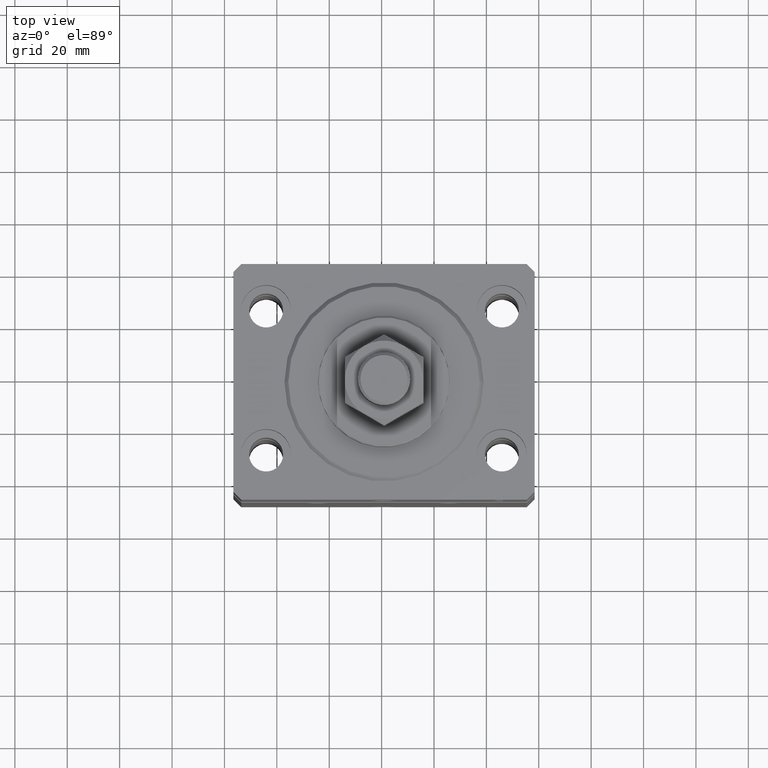
[diagram: clean part render]
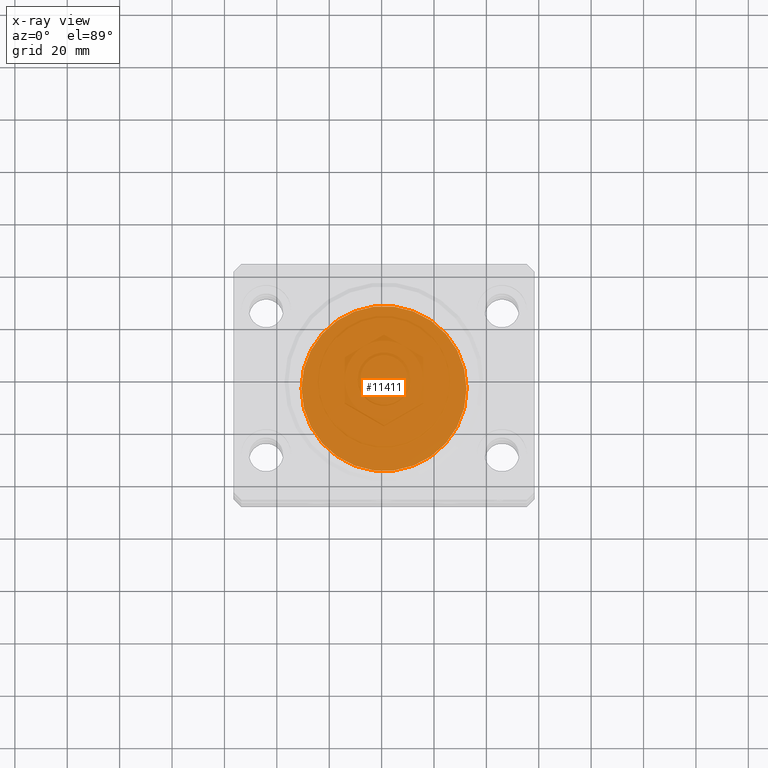
[diagram: x-ray — body ghosted, one internal face saturated and labeled with its STEP entity id]
A machine part, top view, then the same camera in x-ray: the body is ghosted and one INTERNAL B-rep face — a face not visible from any outside direction — is saturated and labeled: STEP entity #11411.
In plain terms, the highlighted planar face has unit normal (0, 0, 1).
Its self-contained STEP definition (entity closure, byte-faithful):
#3292 = VERTEX_POINT ( 'NONE', #46530 ) ;
#5941 = EDGE_CURVE ( 'NONE', #3292, #10983, #45631, .T. ) ;
#6348 = FACE_OUTER_BOUND ( 'NONE', #31257, .T. ) ;
#6816 = AXIS2_PLACEMENT_3D ( 'NONE', #39399, #39870, #20922 ) ;
#10983 = VERTEX_POINT ( 'NONE', #33394 ) ;
#11411 = ADVANCED_FACE ( 'NONE', ( #6348 ), #47416, .T. ) ;
#14664 = ORIENTED_EDGE ( 'NONE', *, *, #42976, .T. ) ;
#19191 = AXIS2_PLACEMENT_3D ( 'NONE', #20380, #35202, #37701 ) ;
#20380 = CARTESIAN_POINT ( 'NONE',  ( 0.000000000000000000, 0.000000000000000000, -147.0999999999999943 ) ) ;
#20922 = DIRECTION ( 'NONE',  ( 1.000000000000000000, 0.000000000000000000, -0.000000000000000000 ) ) ;
#28340 = DIRECTION ( 'NONE',  ( 0.000000000000000000, 0.000000000000000000, 1.000000000000000000 ) ) ;
#31257 = EDGE_LOOP ( 'NONE', ( #40782, #14664 ) ) ;
#33394 = CARTESIAN_POINT ( 'NONE',  ( -31.50000000000000000, 3.857637417314162689E-15, -147.0999999999999943 ) ) ;
#35202 = DIRECTION ( 'NONE',  ( 0.000000000000000000, 0.000000000000000000, 1.000000000000000000 ) ) ;
#37701 = DIRECTION ( 'NONE',  ( 1.000000000000000000, 0.000000000000000000, 0.000000000000000000 ) ) ;
#38591 = DIRECTION ( 'NONE',  ( 1.000000000000000000, 0.000000000000000000, 0.000000000000000000 ) ) ;
#39399 = CARTESIAN_POINT ( 'NONE',  ( 0.000000000000000000, 0.000000000000000000, -147.0999999999999943 ) ) ;
#39870 = DIRECTION ( 'NONE',  ( 0.000000000000000000, 0.000000000000000000, 1.000000000000000000 ) ) ;
#40782 = ORIENTED_EDGE ( 'NONE', *, *, #5941, .T. ) ;
#42741 = CARTESIAN_POINT ( 'NONE',  ( 0.000000000000000000, 0.000000000000000000, -147.0999999999999943 ) ) ;
#42976 = EDGE_CURVE ( 'NONE', #10983, #3292, #45506, .T. ) ;
#44021 = AXIS2_PLACEMENT_3D ( 'NONE', #42741, #28340, #38591 ) ;
#45506 = CIRCLE ( 'NONE', #44021, 31.50000000000000000 ) ;
#45631 = CIRCLE ( 'NONE', #19191, 31.50000000000000000 ) ;
#46530 = CARTESIAN_POINT ( 'NONE',  ( 31.50000000000000000, 0.000000000000000000, -147.0999999999999943 ) ) ;
#47416 = PLANE ( 'NONE',  #6816 ) ;